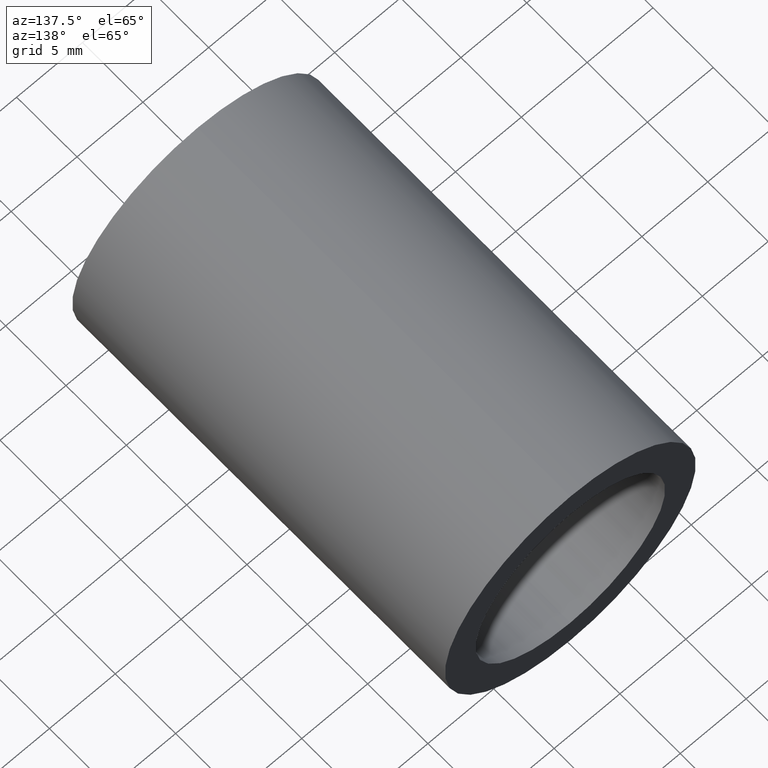
[diagram: clean part render]
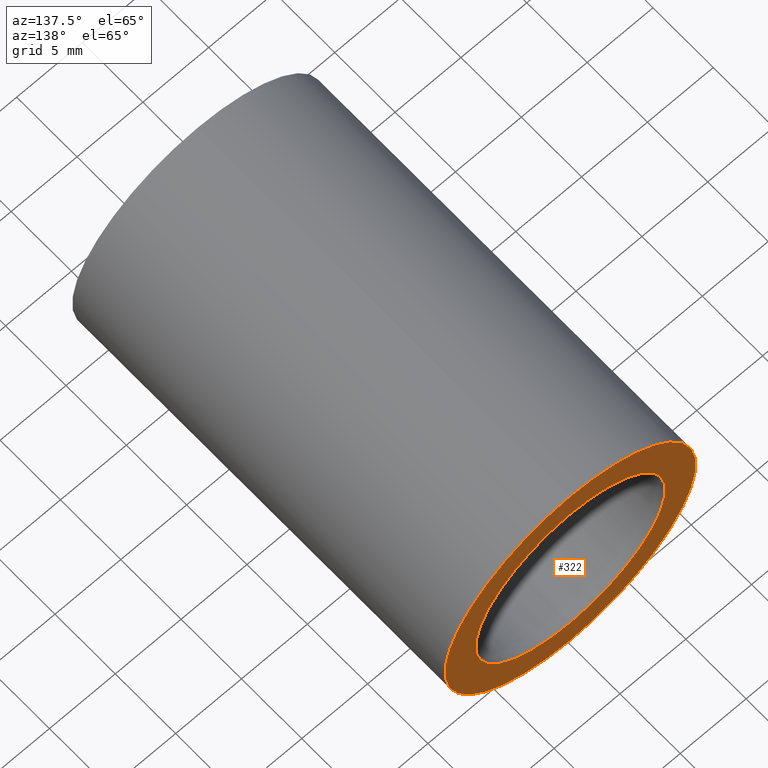
[diagram: same view with one face highlighted and labeled with its STEP entity id]
A machine part, auxiliary view. The second image highlights one B-rep face of the part: STEP entity #322.
In plain terms, the highlighted planar face has unit normal (0, -1, 0).
Its self-contained STEP definition (entity closure, byte-faithful):
#16 = EDGE_CURVE ( 'NONE', #404, #327, #601, .T. ) ;
#23 = ORIENTED_EDGE ( 'NONE', *, *, #257, .F. ) ;
#28 = DIRECTION ( 'NONE',  ( -0.0000000000000000000, 1.000000000000000000, -0.0000000000000000000 ) ) ;
#37 = ORIENTED_EDGE ( 'NONE', *, *, #16, .T. ) ;
#50 = CARTESIAN_POINT ( 'NONE',  ( 7.200000000000014400, 30.89999999999998400, 0.0000000000000000000 ) ) ;
#56 = CARTESIAN_POINT ( 'NONE',  ( 0.0000000000000000000, 30.89999999999998400, 0.0000000000000000000 ) ) ;
#118 = ORIENTED_EDGE ( 'NONE', *, *, #520, .T. ) ;
#133 = VERTEX_POINT ( 'NONE', #474 ) ;
#157 = AXIS2_PLACEMENT_3D ( 'NONE', #266, #28, #450 ) ;
#163 = ORIENTED_EDGE ( 'NONE', *, *, #621, .F. ) ;
#172 = CARTESIAN_POINT ( 'NONE',  ( 0.0000000000000000000, 30.89999999999998400, 0.0000000000000000000 ) ) ;
#181 = DIRECTION ( 'NONE',  ( 0.0000000000000000000, 0.0000000000000000000, 1.000000000000000000 ) ) ;
#188 = PLANE ( 'NONE',  #214 ) ;
#214 = AXIS2_PLACEMENT_3D ( 'NONE', #50, #333, #336 ) ;
#219 = AXIS2_PLACEMENT_3D ( 'NONE', #505, #306, #307 ) ;
#232 = DIRECTION ( 'NONE',  ( -0.0000000000000000000, 1.000000000000000000, -0.0000000000000000000 ) ) ;
#244 = VERTEX_POINT ( 'NONE', #576 ) ;
#253 = CIRCLE ( 'NONE', #157, 9.525000000000019900 ) ;
#257 = EDGE_CURVE ( 'NONE', #133, #244, #559, .T. ) ;
#258 = EDGE_LOOP ( 'NONE', ( #23, #163 ) ) ;
#266 = CARTESIAN_POINT ( 'NONE',  ( 0.0000000000000000000, 30.89999999999998400, 0.0000000000000000000 ) ) ;
#294 = DIRECTION ( 'NONE',  ( -0.0000000000000000000, 1.000000000000000000, -0.0000000000000000000 ) ) ;
#306 = DIRECTION ( 'NONE',  ( -0.0000000000000000000, 1.000000000000000000, -0.0000000000000000000 ) ) ;
#307 = DIRECTION ( 'NONE',  ( 0.0000000000000000000, 0.0000000000000000000, 1.000000000000000000 ) ) ;
#322 = ADVANCED_FACE ( 'NONE', ( #430, #347 ), #188, .F. ) ;
#327 = VERTEX_POINT ( 'NONE', #446 ) ;
#333 = DIRECTION ( 'NONE',  ( 0.0000000000000000000, -1.000000000000000000, 0.0000000000000000000 ) ) ;
#336 = DIRECTION ( 'NONE',  ( 0.0000000000000000000, -0.0000000000000000000, -1.000000000000000000 ) ) ;
#347 = FACE_OUTER_BOUND ( 'NONE', #386, .T. ) ;
#386 = EDGE_LOOP ( 'NONE', ( #37, #118 ) ) ;
#396 = CARTESIAN_POINT ( 'NONE',  ( 0.0000000000000000000, 30.89999999999998400, 9.525000000000019900 ) ) ;
#404 = VERTEX_POINT ( 'NONE', #396 ) ;
#420 = CIRCLE ( 'NONE', #593, 7.200000000000014400 ) ;
#430 = FACE_BOUND ( 'NONE', #258, .T. ) ;
#446 = CARTESIAN_POINT ( 'NONE',  ( 1.166476076187856400E-015, 30.89999999999998400, -9.525000000000019900 ) ) ;
#450 = DIRECTION ( 'NONE',  ( 0.0000000000000000000, 0.0000000000000000000, 1.000000000000000000 ) ) ;
#474 = CARTESIAN_POINT ( 'NONE',  ( 0.0000000000000000000, 30.89999999999998400, 7.200000000000014400 ) ) ;
#479 = DIRECTION ( 'NONE',  ( 0.0000000000000000000, 0.0000000000000000000, 1.000000000000000000 ) ) ;
#505 = CARTESIAN_POINT ( 'NONE',  ( 0.0000000000000000000, 30.89999999999998400, 0.0000000000000000000 ) ) ;
#520 = EDGE_CURVE ( 'NONE', #327, #404, #253, .T. ) ;
#545 = AXIS2_PLACEMENT_3D ( 'NONE', #56, #294, #479 ) ;
#559 = CIRCLE ( 'NONE', #545, 7.200000000000014400 ) ;
#576 = CARTESIAN_POINT ( 'NONE',  ( 8.817456953860959100E-016, 30.89999999999998400, -7.200000000000014400 ) ) ;
#593 = AXIS2_PLACEMENT_3D ( 'NONE', #172, #232, #181 ) ;
#601 = CIRCLE ( 'NONE', #219, 9.525000000000019900 ) ;
#621 = EDGE_CURVE ( 'NONE', #244, #133, #420, .T. ) ;